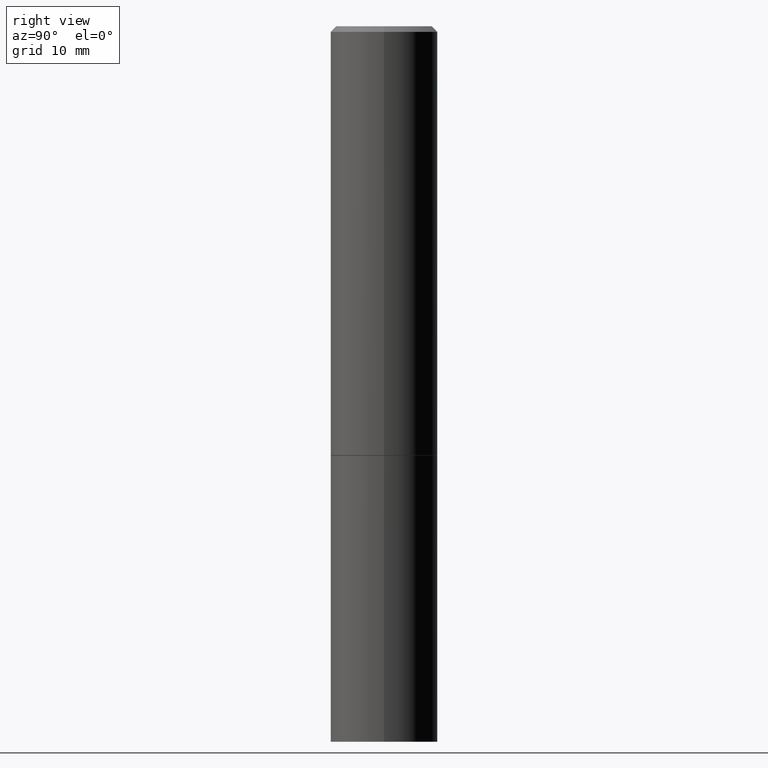
[diagram: clean part render]
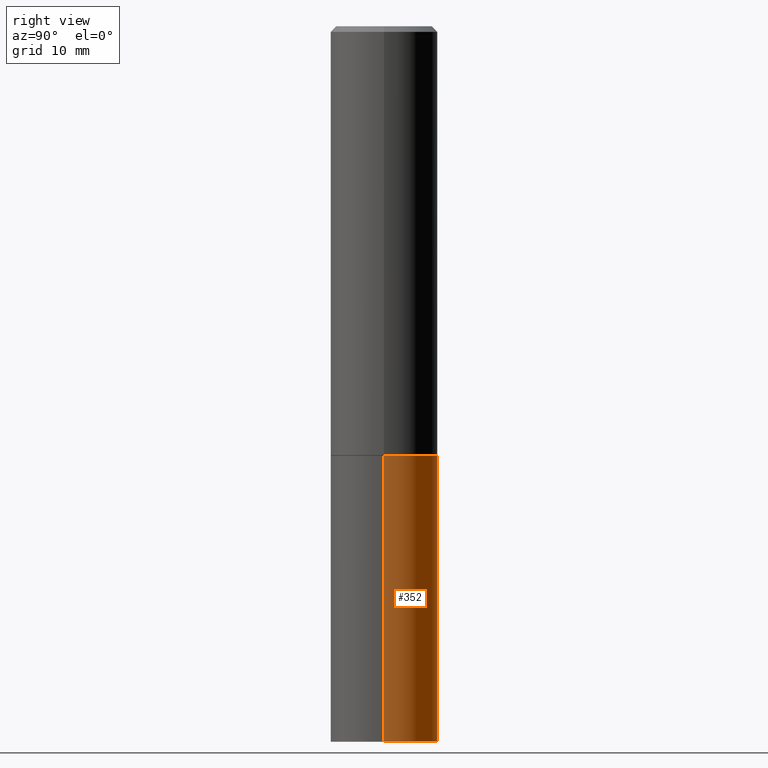
[diagram: same view with one face highlighted and labeled with its STEP entity id]
A machine part, right view. The second image highlights one B-rep face of the part: STEP entity #352.
In plain terms, the highlighted cylindrical surface (partial cylindrical patch) has radius 4.7625 mm, axis along (-0, 0, 1).
Its self-contained STEP definition (entity closure, byte-faithful):
#11 = VERTEX_POINT ( 'NONE', #12 ) ;
#12 = CARTESIAN_POINT ( 'NONE',  ( -0.1875000000000000278, -5.650695048136103317E-15, -2.500000000000000000 ) ) ;
#42 = VECTOR ( 'NONE', #340, 39.37007874015748143 ) ;
#46 = ORIENTED_EDGE ( 'NONE', *, *, #61, .F. ) ;
#61 = EDGE_CURVE ( 'NONE', #273, #327, #223, .T. ) ;
#72 = ORIENTED_EDGE ( 'NONE', *, *, #180, .T. ) ;
#83 = CARTESIAN_POINT ( 'NONE',  ( 3.668203209277704895E-29, -5.237222008264718177E-15, -1.500000000000000222 ) ) ;
#100 = FACE_OUTER_BOUND ( 'NONE', #119, .T. ) ;
#103 = DIRECTION ( 'NONE',  ( 1.000000000000000000, -6.982962677686265922E-15, 4.876176775795935793E-29 ) ) ;
#119 = EDGE_LOOP ( 'NONE', ( #72, #318, #247, #46 ) ) ;
#121 = CIRCLE ( 'NONE', #362, 0.1875000000000000278 ) ;
#132 = DIRECTION ( 'NONE',  ( 1.000000000000000000, -6.982962677686266711E-15, 0.000000000000000000 ) ) ;
#146 = CARTESIAN_POINT ( 'NONE',  ( 0.1875000000000000278, -6.546527510330893974E-15, -1.500000000000000222 ) ) ;
#165 = DIRECTION ( 'NONE',  ( 1.000000000000000000, -6.982962677686266711E-15, 0.000000000000000000 ) ) ;
#180 = EDGE_CURVE ( 'NONE', #273, #11, #284, .T. ) ;
#202 = CARTESIAN_POINT ( 'NONE',  ( 6.113672015462842613E-29, -8.728703347107864943E-15, -2.500000000000000000 ) ) ;
#211 = CARTESIAN_POINT ( 'NONE',  ( 0.1875000000000000278, -1.003800884917403995E-14, -2.500000000000000000 ) ) ;
#214 = CARTESIAN_POINT ( 'NONE',  ( 0.000000000000000000, 0.000000000000000000, 0.000000000000000000 ) ) ;
#216 = AXIS2_PLACEMENT_3D ( 'NONE', #214, #303, #103 ) ;
#223 = LINE ( 'NONE', #290, #345 ) ;
#232 = EDGE_CURVE ( 'NONE', #327, #235, #121, .T. ) ;
#234 = LINE ( 'NONE', #317, #42 ) ;
#235 = VERTEX_POINT ( 'NONE', #279 ) ;
#240 = CYLINDRICAL_SURFACE ( 'NONE', #216, 0.1875000000000000278 ) ;
#247 = ORIENTED_EDGE ( 'NONE', *, *, #232, .F. ) ;
#273 = VERTEX_POINT ( 'NONE', #211 ) ;
#279 = CARTESIAN_POINT ( 'NONE',  ( -0.1875000000000000278, -5.650695048136103317E-15, -1.500000000000000222 ) ) ;
#284 = CIRCLE ( 'NONE', #307, 0.1875000000000000278 ) ;
#290 = CARTESIAN_POINT ( 'NONE',  ( 0.1875000000000000278, -1.309305502066175008E-15, 9.142831454617381013E-30 ) ) ;
#294 = EDGE_CURVE ( 'NONE', #11, #235, #234, .T. ) ;
#303 = DIRECTION ( 'NONE',  ( -2.445468806185136597E-29, 3.491481338843145583E-15, 1.000000000000000000 ) ) ;
#306 = DIRECTION ( 'NONE',  ( -2.445468806185136877E-29, 3.491481338843145188E-15, 1.000000000000000000 ) ) ;
#307 = AXIS2_PLACEMENT_3D ( 'NONE', #202, #311, #132 ) ;
#311 = DIRECTION ( 'NONE',  ( -2.445468806185136597E-29, 3.491481338843145583E-15, 1.000000000000000000 ) ) ;
#314 = DIRECTION ( 'NONE',  ( -2.445468806185136597E-29, 3.491481338843145583E-15, 1.000000000000000000 ) ) ;
#317 = CARTESIAN_POINT ( 'NONE',  ( -0.1875000000000000278, 1.332267629550188046E-15, -9.223003294227947991E-30 ) ) ;
#318 = ORIENTED_EDGE ( 'NONE', *, *, #294, .T. ) ;
#327 = VERTEX_POINT ( 'NONE', #146 ) ;
#340 = DIRECTION ( 'NONE',  ( -2.445468806185136877E-29, 3.491481338843145188E-15, 1.000000000000000000 ) ) ;
#345 = VECTOR ( 'NONE', #306, 39.37007874015748143 ) ;
#352 = ADVANCED_FACE ( 'NONE', ( #100 ), #240, .T. ) ;
#362 = AXIS2_PLACEMENT_3D ( 'NONE', #83, #314, #165 ) ;